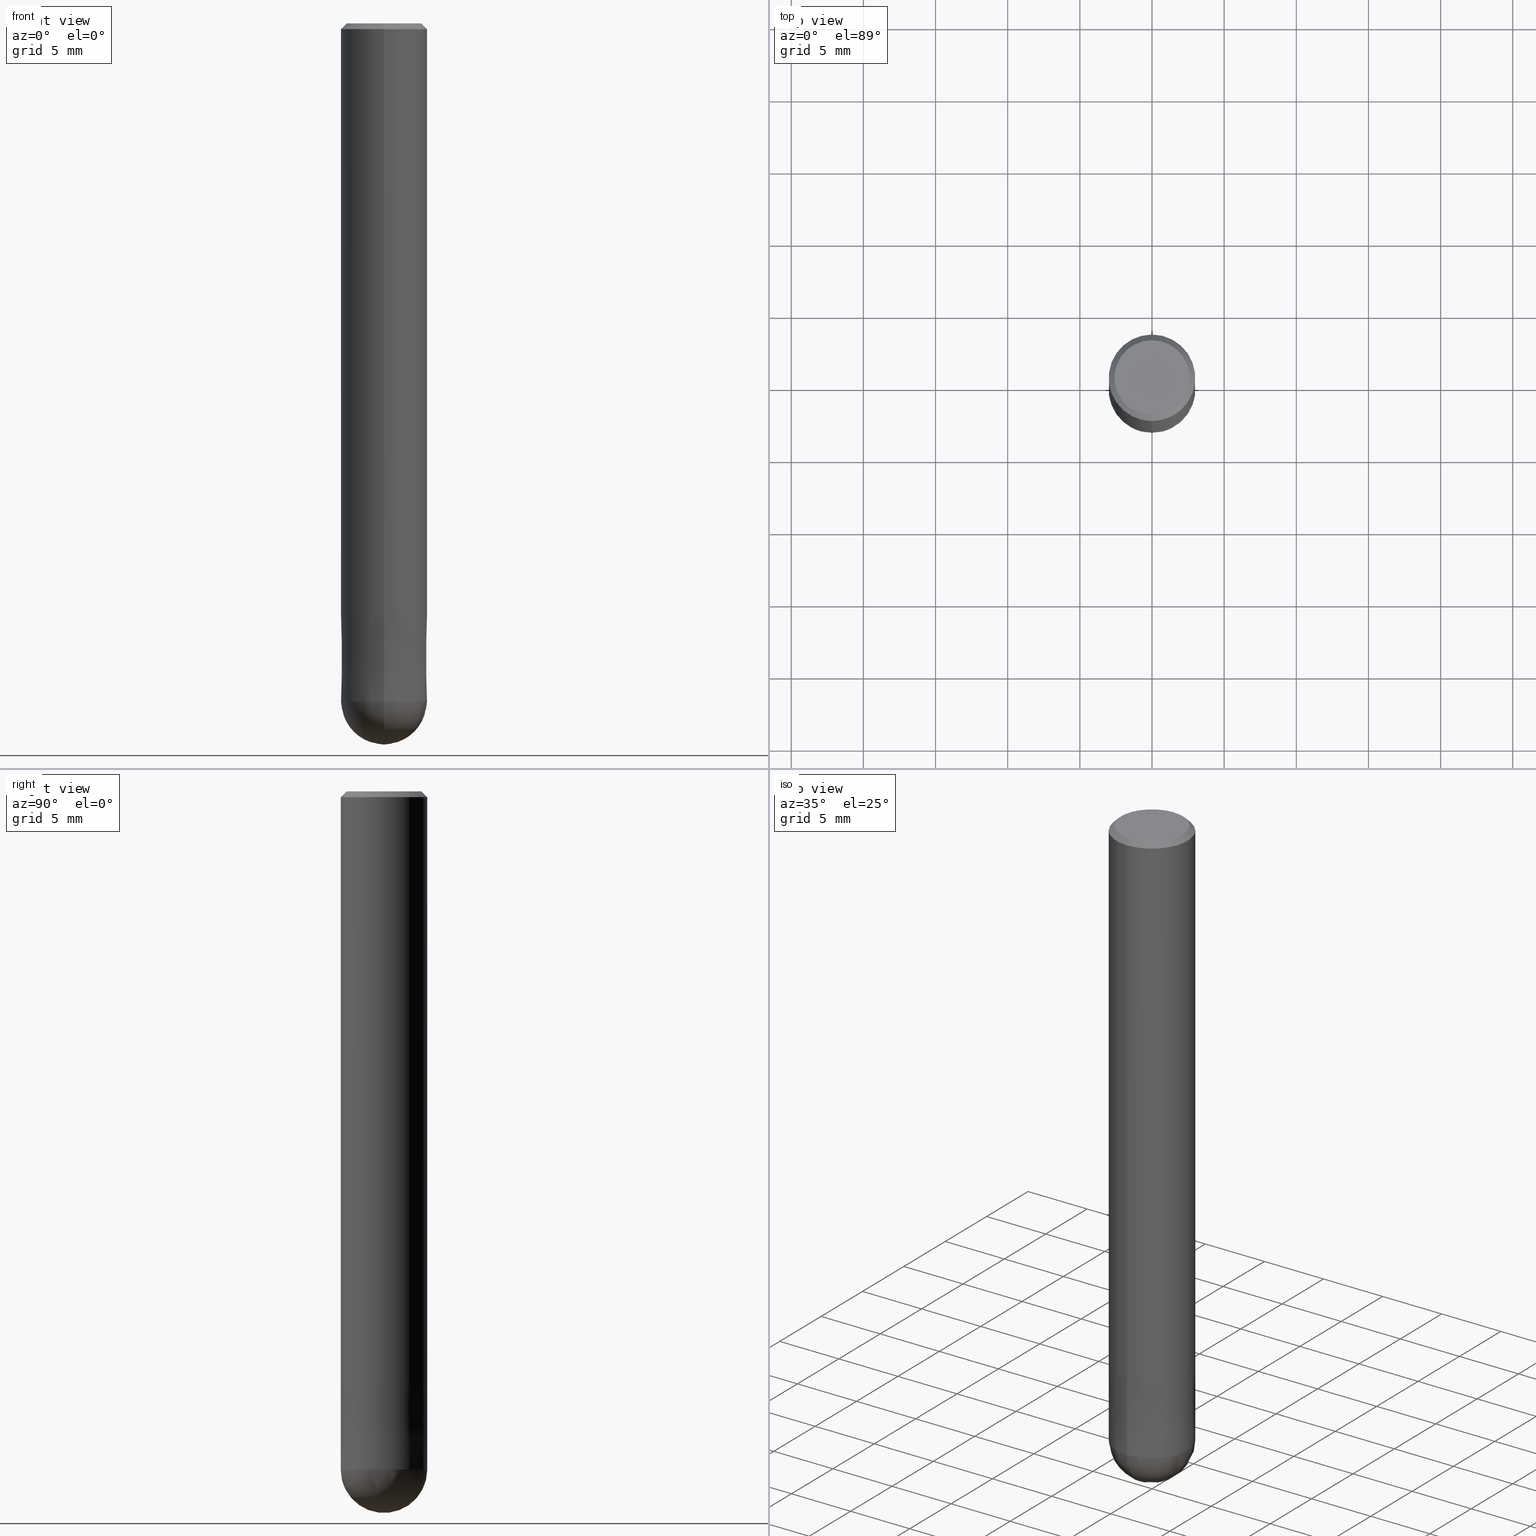
[diagram: canonical four-view strip — front | top / right | iso, engineering-drawing reading convention]
A machine part, canonical four-view strip (front | top / right | iso — engineering-drawing reading convention). The complete STEP part file that produces these views, byte-faithful:
ISO-10303-21;
HEADER;
FILE_DESCRIPTION(('no description'),'unknown implementation level');
FILE_NAME('HFB4060-0900S-Huellk.stp','  ',('CIMSOURCE GmbH'),('CADClick - KiM GmbH - www.kimweb.de'),'unknown preprocess','ACIS','unknown authorization');
FILE_SCHEMA(('automotive_design'));
ENDSEC;
DATA;
#1=MECHANICAL_DESIGN_GEOMETRIC_PRESENTATION_REPRESENTATION(' ',(#10,#11,#12,#13,#14,#15,#16,#17,#18,#19,#20,#21,#22,#23,#24,#25,#26,#27,#28,#29,#30,#31,#32,#33,#34,#35,#36,#37,#38,#39,#40,#41,#42,#43,#44,#45,#46,#47),#6);
#2=PRODUCT_DEFINITION_CONTEXT('',#48,'design');
#3=APPLICATION_PROTOCOL_DEFINITION('INTERNATIONAL STANDARD','automotive_design',1994,#48);
#4=PRODUCT_CATEGORY_RELATIONSHIP('NONE','NONE',#49,#50);
#5=SHAPE_DEFINITION_REPRESENTATION(#51,#52);
#6= (GEOMETRIC_REPRESENTATION_CONTEXT(3)GLOBAL_UNCERTAINTY_ASSIGNED_CONTEXT((#55))GLOBAL_UNIT_ASSIGNED_CONTEXT((#57,#58,#59))REPRESENTATION_CONTEXT('NONE','WORKSPACE'));
#10=STYLED_ITEM('',(#61),#62);
#11=STYLED_ITEM('',(#63),#64);
#12=STYLED_ITEM('',(#65),#66);
#13=STYLED_ITEM('',(#67),#68);
#14=STYLED_ITEM('',(#69),#70);
#15=STYLED_ITEM('',(#71),#72);
#16=STYLED_ITEM('',(#73),#74);
#17=STYLED_ITEM('',(#75),#76);
#18=STYLED_ITEM('',(#77),#78);
#19=STYLED_ITEM('',(#79),#80);
#20=STYLED_ITEM('',(#81),#82);
#21=STYLED_ITEM('',(#83),#84);
#22=STYLED_ITEM('',(#85),#86);
#23=STYLED_ITEM('',(#87),#88);
#24=STYLED_ITEM('',(#89),#90);
#25=STYLED_ITEM('',(#91),#92);
#26=STYLED_ITEM('',(#93),#94);
#27=STYLED_ITEM('',(#95),#96);
#28=STYLED_ITEM('',(#97),#98);
#29=STYLED_ITEM('',(#99),#100);
#30=STYLED_ITEM('',(#101),#102);
#31=STYLED_ITEM('',(#103),#104);
#32=STYLED_ITEM('',(#105),#106);
#33=STYLED_ITEM('',(#107),#108);
#34=STYLED_ITEM('',(#109),#110);
#35=STYLED_ITEM('',(#111),#112);
#36=STYLED_ITEM('',(#113),#114);
#37=STYLED_ITEM('',(#115),#116);
#38=STYLED_ITEM('',(#117),#118);
#39=STYLED_ITEM('',(#119),#120);
#40=STYLED_ITEM('',(#121),#122);
#41=STYLED_ITEM('',(#123),#124);
#42=STYLED_ITEM('',(#125),#126);
#43=STYLED_ITEM('',(#127),#128);
#44=STYLED_ITEM('',(#129),#130);
#45=STYLED_ITEM('',(#131),#132);
#46=STYLED_ITEM('',(#133),#134);
#47=STYLED_ITEM('',(#135),#136);
#48=APPLICATION_CONTEXT(' ');
#49=PRODUCT_CATEGORY('part','NONE');
#50=PRODUCT_RELATED_PRODUCT_CATEGORY('detail',' ',(#137));
#51=PRODUCT_DEFINITION_SHAPE('NONE','NONE',#138);
#52=ADVANCED_BREP_SHAPE_REPRESENTATION('1',(#112,#139),#6);
#55=UNCERTAINTY_MEASURE_WITH_UNIT(LENGTH_MEASURE(1.0E-006),#57,'','');
#57= (CONVERSION_BASED_UNIT('MILLIMETRE',#142)LENGTH_UNIT()NAMED_UNIT(#145));
#58= (NAMED_UNIT(#147)PLANE_ANGLE_UNIT()SI_UNIT($,.RADIAN.));
#59= (NAMED_UNIT(#147)SOLID_ANGLE_UNIT()SI_UNIT($,.STERADIAN.));
#61=PRESENTATION_STYLE_ASSIGNMENT((#153));
#62=VERTEX_POINT('',#154);
#63=PRESENTATION_STYLE_ASSIGNMENT((#155));
#64=EDGE_CURVE('',#62,#96,#156,.T.);
#65=PRESENTATION_STYLE_ASSIGNMENT((#157));
#66=ADVANCED_FACE('',(#158,#159),#160,.T.);
#67=PRESENTATION_STYLE_ASSIGNMENT((#161));
#68=EDGE_CURVE('',#96,#78,#162,.T.);
#69=PRESENTATION_STYLE_ASSIGNMENT((#163));
#70=ADVANCED_FACE('',(#164),#165,.T.);
#71=PRESENTATION_STYLE_ASSIGNMENT((#166));
#72=EDGE_CURVE('',#92,#98,#167,.T.);
#73=PRESENTATION_STYLE_ASSIGNMENT((#168));
#74=ADVANCED_FACE('',(#169),#170,.T.);
#75=PRESENTATION_STYLE_ASSIGNMENT((#171));
#76=EDGE_CURVE('',#114,#62,#172,.T.);
#77=PRESENTATION_STYLE_ASSIGNMENT((#173));
#78=VERTEX_POINT('',#174);
#79=PRESENTATION_STYLE_ASSIGNMENT((#175));
#80=VERTEX_POINT('',#176);
#81=PRESENTATION_STYLE_ASSIGNMENT((#177));
#82=VERTEX_POINT('',#178);
#83=PRESENTATION_STYLE_ASSIGNMENT((#179));
#84=EDGE_CURVE('',#80,#82,#180,.T.);
#85=PRESENTATION_STYLE_ASSIGNMENT((#181));
#86=EDGE_CURVE('',#92,#94,#182,.T.);
#87=PRESENTATION_STYLE_ASSIGNMENT((#183));
#88=ADVANCED_FACE('',(#184),#185,.T.);
#89=PRESENTATION_STYLE_ASSIGNMENT((#186));
#90=EDGE_CURVE('',#78,#114,#187,.T.);
#91=PRESENTATION_STYLE_ASSIGNMENT((#188));
#92=VERTEX_POINT('',#189);
#93=PRESENTATION_STYLE_ASSIGNMENT((#190));
#94=VERTEX_POINT('',#191);
#95=PRESENTATION_STYLE_ASSIGNMENT((#192));
#96=VERTEX_POINT('',#193);
#97=PRESENTATION_STYLE_ASSIGNMENT((#194));
#98=VERTEX_POINT('',#195);
#99=PRESENTATION_STYLE_ASSIGNMENT((#196));
#100=ADVANCED_FACE('',(#197),#198,.T.);
#101=PRESENTATION_STYLE_ASSIGNMENT((#199));
#102=EDGE_CURVE('',#130,#98,#200,.T.);
#103=PRESENTATION_STYLE_ASSIGNMENT((#201));
#104=ADVANCED_FACE('',(#202),#203,.T.);
#105=PRESENTATION_STYLE_ASSIGNMENT((#204));
#106=ADVANCED_FACE('',(#205),#206,.T.);
#107=PRESENTATION_STYLE_ASSIGNMENT((#207));
#108=ADVANCED_FACE('',(#208),#209,.T.);
#109=PRESENTATION_STYLE_ASSIGNMENT((#210));
#110=EDGE_CURVE('',#98,#130,#211,.T.);
#111=PRESENTATION_STYLE_ASSIGNMENT((#212));
#112=MANIFOLD_SOLID_BREP('1',#213);
#113=PRESENTATION_STYLE_ASSIGNMENT((#214));
#114=VERTEX_POINT('',#215);
#115=PRESENTATION_STYLE_ASSIGNMENT((#216));
#116=EDGE_CURVE('',#82,#130,#217,.T.);
#117=PRESENTATION_STYLE_ASSIGNMENT((#218));
#118=ADVANCED_FACE('',(#219),#220,.T.);
#119=PRESENTATION_STYLE_ASSIGNMENT((#221));
#120=EDGE_CURVE('',#62,#114,#222,.T.);
#121=PRESENTATION_STYLE_ASSIGNMENT((#223));
#122=EDGE_CURVE('',#78,#96,#224,.T.);
#123=PRESENTATION_STYLE_ASSIGNMENT((#225));
#124=EDGE_CURVE('',#62,#114,#226,.T.);
#125=PRESENTATION_STYLE_ASSIGNMENT((#227));
#126=EDGE_CURVE('',#82,#80,#228,.T.);
#127=PRESENTATION_STYLE_ASSIGNMENT((#229));
#128=EDGE_CURVE('',#98,#80,#230,.T.);
#129=PRESENTATION_STYLE_ASSIGNMENT((#231));
#130=VERTEX_POINT('',#232);
#131=PRESENTATION_STYLE_ASSIGNMENT((#233));
#132=EDGE_CURVE('',#94,#92,#234,.T.);
#133=PRESENTATION_STYLE_ASSIGNMENT((#235));
#134=EDGE_CURVE('',#130,#94,#236,.T.);
#135=PRESENTATION_STYLE_ASSIGNMENT((#237));
#136=ADVANCED_FACE('',(#238),#239,.T.);
#137=PRODUCT('1','1','PART-1-DESC',(#240));
#138=PRODUCT_DEFINITION('NONE','NONE',#241,#2);
#139=AXIS2_PLACEMENT_3D('',#242,#243,#244);
#142=LENGTH_MEASURE_WITH_UNIT(LENGTH_MEASURE(1.0),#245);
#145=DIMENSIONAL_EXPONENTS(1.0,0.0,0.0,0.0,0.0,0.0,0.0);
#147=DIMENSIONAL_EXPONENTS(0.0,0.0,0.0,0.0,0.0,0.0,0.0);
#153=POINT_STYLE(' ',#246,POSITIVE_LENGTH_MEASURE(1.0E-006),#247);
#154=CARTESIAN_POINT('',(3.67381906146713E-016,-3.0,-47.0));
#155=CURVE_STYLE('',#248,POSITIVE_LENGTH_MEASURE(1.0E-006),#249);
#156=LINE('',#250,#251);
#157=SURFACE_STYLE_USAGE(.BOTH.,#252);
#158=FACE_OUTER_BOUND('',#253,.T.);
#159=FACE_BOUND('',#254,.T.);
#160=PLANE('',#255);
#161=CURVE_STYLE('',#256,POSITIVE_LENGTH_MEASURE(1.0E-006),#257);
#162=CIRCLE('',#258,2.9999);
#163=SURFACE_STYLE_USAGE(.BOTH.,#259);
#164=FACE_OUTER_BOUND('',#260,.T.);
#165=CONICAL_SURFACE('',#261,2.99995,1.66666666652326E-005);
#166=CURVE_STYLE('',#262,POSITIVE_LENGTH_MEASURE(1.0E-006),#263);
#167=LINE('',#264,#265);
#168=SURFACE_STYLE_USAGE(.BOTH.,#266);
#169=FACE_OUTER_BOUND('',#267,.T.);
#170=SPHERICAL_SURFACE('',#268,3.00000000000001);
#171=CURVE_STYLE('',#269,POSITIVE_LENGTH_MEASURE(1.0E-006),#270);
#172=CIRCLE('',#271,3.0);
#173=POINT_STYLE(' ',#272,POSITIVE_LENGTH_MEASURE(1.0E-006),#273);
#174=CARTESIAN_POINT('',(0.0,2.9999,-41.0));
#175=POINT_STYLE(' ',#274,POSITIVE_LENGTH_MEASURE(1.0E-006),#275);
#176=CARTESIAN_POINT('',(0.0,3.0,-41.0));
#177=POINT_STYLE(' ',#276,POSITIVE_LENGTH_MEASURE(1.0E-006),#277);
#178=CARTESIAN_POINT('',(3.67381906146713E-016,-3.0,-41.0));
#179=CURVE_STYLE('',#278,POSITIVE_LENGTH_MEASURE(1.0E-006),#279);
#180=CIRCLE('',#280,3.0);
#181=CURVE_STYLE('',#281,POSITIVE_LENGTH_MEASURE(1.0E-006),#282);
#182=CIRCLE('',#283,2.6);
#183=SURFACE_STYLE_USAGE(.BOTH.,#284);
#184=FACE_OUTER_BOUND('',#285,.T.);
#185=PLANE('',#286);
#186=CURVE_STYLE('',#287,POSITIVE_LENGTH_MEASURE(1.0E-006),#288);
#187=LINE('',#289,#290);
#188=POINT_STYLE(' ',#291,POSITIVE_LENGTH_MEASURE(1.0E-006),#292);
#189=CARTESIAN_POINT('',(0.0,2.6,0.0));
#190=POINT_STYLE(' ',#293,POSITIVE_LENGTH_MEASURE(1.0E-006),#294);
#191=CARTESIAN_POINT('',(3.18397651993818E-016,-2.6,0.0));
#192=POINT_STYLE(' ',#295,POSITIVE_LENGTH_MEASURE(1.0E-006),#296);
#193=CARTESIAN_POINT('',(3.67369660083175E-016,-2.9999,-41.0));
#194=POINT_STYLE(' ',#297,POSITIVE_LENGTH_MEASURE(1.0E-006),#298);
#195=CARTESIAN_POINT('',(0.0,3.0,-0.399999999999999));
#196=SURFACE_STYLE_USAGE(.BOTH.,#299);
#197=FACE_OUTER_BOUND('',#300,.T.);
#198=CONICAL_SURFACE('',#301,2.8,0.78539816339745);
#199=CURVE_STYLE('',#302,POSITIVE_LENGTH_MEASURE(1.0E-006),#303);
#200=CIRCLE('',#304,3.0);
#201=SURFACE_STYLE_USAGE(.BOTH.,#305);
#202=FACE_OUTER_BOUND('',#306,.T.);
#203=SPHERICAL_SURFACE('',#307,3.00000000000001);
#204=SURFACE_STYLE_USAGE(.BOTH.,#308);
#205=FACE_OUTER_BOUND('',#309,.T.);
#206=CONICAL_SURFACE('',#310,2.99995,1.66666666652326E-005);
#207=SURFACE_STYLE_USAGE(.BOTH.,#311);
#208=FACE_OUTER_BOUND('',#312,.T.);
#209=CYLINDRICAL_SURFACE('',#313,3.0);
#210=CURVE_STYLE('',#314,POSITIVE_LENGTH_MEASURE(1.0E-006),#315);
#211=CIRCLE('',#316,3.0);
#212=SURFACE_STYLE_USAGE(.BOTH.,#317);
#213=CLOSED_SHELL('',(#74,#106,#136,#118,#66,#88,#100,#108,#70,#104));
#214=POINT_STYLE(' ',#318,POSITIVE_LENGTH_MEASURE(1.0E-006),#319);
#215=CARTESIAN_POINT('',(0.0,3.0,-47.0));
#216=CURVE_STYLE('',#320,POSITIVE_LENGTH_MEASURE(1.0E-006),#321);
#217=LINE('',#322,#323);
#218=SURFACE_STYLE_USAGE(.BOTH.,#324);
#219=FACE_OUTER_BOUND('',#325,.T.);
#220=CONICAL_SURFACE('',#326,2.8,0.78539816339745);
#221=CURVE_STYLE('',#327,POSITIVE_LENGTH_MEASURE(1.0E-006),#328);
#222=CIRCLE('',#329,3.0);
#223=CURVE_STYLE('',#330,POSITIVE_LENGTH_MEASURE(1.0E-006),#331);
#224=CIRCLE('',#332,2.9999);
#225=CURVE_STYLE('',#333,POSITIVE_LENGTH_MEASURE(1.0E-006),#334);
#226=CIRCLE('',#335,3.00000000000001);
#227=CURVE_STYLE('',#336,POSITIVE_LENGTH_MEASURE(1.0E-006),#337);
#228=CIRCLE('',#338,3.0);
#229=CURVE_STYLE('',#339,POSITIVE_LENGTH_MEASURE(1.0E-006),#340);
#230=LINE('',#341,#342);
#231=POINT_STYLE(' ',#343,POSITIVE_LENGTH_MEASURE(1.0E-006),#344);
#232=CARTESIAN_POINT('',(3.67381906146713E-016,-3.0,-0.399999999999999));
#233=CURVE_STYLE('',#345,POSITIVE_LENGTH_MEASURE(1.0E-006),#346);
#234=CIRCLE('',#347,2.6);
#235=CURVE_STYLE('',#348,POSITIVE_LENGTH_MEASURE(1.0E-006),#349);
#236=LINE('',#350,#351);
#237=SURFACE_STYLE_USAGE(.BOTH.,#352);
#238=FACE_OUTER_BOUND('',#353,.T.);
#239=CYLINDRICAL_SURFACE('',#354,3.0);
#240=PRODUCT_CONTEXT('',#48,'mechanical');
#241=PRODUCT_DEFINITION_FORMATION_WITH_SPECIFIED_SOURCE(' ','NONE',#137,.NOT_KNOWN.);
#242=CARTESIAN_POINT('',(0.0,0.0,0.0));
#243=DIRECTION('',(0.0,0.0,1.0));
#244=DIRECTION('',(1.0,0.0,0.0));
#245= (NAMED_UNIT(#145)LENGTH_UNIT()SI_UNIT(.MILLI.,.METRE.));
#246=PRE_DEFINED_MARKER('');
#247=COLOUR_RGB('',0.800000011920929,0.800000011920929,0.800000011920929);
#248=DRAUGHTING_PRE_DEFINED_CURVE_FONT('continuous');
#249=COLOUR_RGB('',0.800000011920929,0.800000011920929,0.800000011920929);
#250=CARTESIAN_POINT('',(3.67375783114944E-016,-2.99995,-44.0));
#251=VECTOR('',#356,1.0);
#252=SURFACE_SIDE_STYLE('',(#357));
#253=EDGE_LOOP('',(#358,#359));
#254=EDGE_LOOP('',(#360,#361));
#255=AXIS2_PLACEMENT_3D('',#362,#363,#364);
#256=DRAUGHTING_PRE_DEFINED_CURVE_FONT('continuous');
#257=COLOUR_RGB('',0.800000011920929,0.800000011920929,0.800000011920929);
#258=AXIS2_PLACEMENT_3D('',#365,#366,#367);
#259=SURFACE_SIDE_STYLE('',(#368));
#260=EDGE_LOOP('',(#369,#370,#371,#372));
#261=AXIS2_PLACEMENT_3D('',#373,#374,#375);
#262=DRAUGHTING_PRE_DEFINED_CURVE_FONT('continuous');
#263=COLOUR_RGB('',0.498039215803146,0.498039215803146,0.498039215803146);
#264=CARTESIAN_POINT('',(-3.42889779070266E-016,2.8,-0.200000000000003));
#265=VECTOR('',#376,1.0);
#266=SURFACE_SIDE_STYLE('',(#377));
#267=EDGE_LOOP('',(#378,#379));
#268=AXIS2_PLACEMENT_3D('',#380,#381,#382);
#269=DRAUGHTING_PRE_DEFINED_CURVE_FONT('continuous');
#270=COLOUR_RGB('',0.800000011920929,0.800000011920929,0.800000011920929);
#271=AXIS2_PLACEMENT_3D('',#383,#384,#385);
#272=PRE_DEFINED_MARKER('');
#273=COLOUR_RGB('',0.800000011920929,0.800000011920929,0.800000011920929);
#274=PRE_DEFINED_MARKER('');
#275=COLOUR_RGB('',0.498039215803146,0.498039215803146,0.498039215803146);
#276=PRE_DEFINED_MARKER('');
#277=COLOUR_RGB('',0.498039215803146,0.498039215803146,0.498039215803146);
#278=DRAUGHTING_PRE_DEFINED_CURVE_FONT('continuous');
#279=COLOUR_RGB('',0.498039215803146,0.498039215803146,0.498039215803146);
#280=AXIS2_PLACEMENT_3D('',#386,#387,#388);
#281=DRAUGHTING_PRE_DEFINED_CURVE_FONT('continuous');
#282=COLOUR_RGB('',0.498039215803146,0.498039215803146,0.498039215803146);
#283=AXIS2_PLACEMENT_3D('',#389,#390,#391);
#284=SURFACE_SIDE_STYLE('',(#392));
#285=EDGE_LOOP('',(#393,#394));
#286=AXIS2_PLACEMENT_3D('',#395,#396,#397);
#287=DRAUGHTING_PRE_DEFINED_CURVE_FONT('continuous');
#288=COLOUR_RGB('',0.800000011920929,0.800000011920929,0.800000011920929);
#289=CARTESIAN_POINT('',(-3.67375783114944E-016,2.99995,-44.0));
#290=VECTOR('',#398,1.0);
#291=PRE_DEFINED_MARKER('');
#292=COLOUR_RGB('',0.498039215803146,0.498039215803146,0.498039215803146);
#293=PRE_DEFINED_MARKER('');
#294=COLOUR_RGB('',0.498039215803146,0.498039215803146,0.498039215803146);
#295=PRE_DEFINED_MARKER('');
#296=COLOUR_RGB('',0.800000011920929,0.800000011920929,0.800000011920929);
#297=PRE_DEFINED_MARKER('');
#298=COLOUR_RGB('',0.498039215803146,0.498039215803146,0.498039215803146);
#299=SURFACE_SIDE_STYLE('',(#399));
#300=EDGE_LOOP('',(#400,#401,#402,#403));
#301=AXIS2_PLACEMENT_3D('',#404,#405,#406);
#302=DRAUGHTING_PRE_DEFINED_CURVE_FONT('continuous');
#303=COLOUR_RGB('',0.498039215803146,0.498039215803146,0.498039215803146);
#304=AXIS2_PLACEMENT_3D('',#407,#408,#409);
#305=SURFACE_SIDE_STYLE('',(#410));
#306=EDGE_LOOP('',(#411,#412));
#307=AXIS2_PLACEMENT_3D('',#413,#414,#415);
#308=SURFACE_SIDE_STYLE('',(#416));
#309=EDGE_LOOP('',(#417,#418,#419,#420));
#310=AXIS2_PLACEMENT_3D('',#421,#422,#423);
#311=SURFACE_SIDE_STYLE('',(#424));
#312=EDGE_LOOP('',(#425,#426,#427,#428));
#313=AXIS2_PLACEMENT_3D('',#429,#430,#431);
#314=DRAUGHTING_PRE_DEFINED_CURVE_FONT('continuous');
#315=COLOUR_RGB('',0.498039215803146,0.498039215803146,0.498039215803146);
#316=AXIS2_PLACEMENT_3D('',#432,#433,#434);
#317=SURFACE_SIDE_STYLE('',(#435));
#318=PRE_DEFINED_MARKER('');
#319=COLOUR_RGB('',0.800000011920929,0.800000011920929,0.800000011920929);
#320=DRAUGHTING_PRE_DEFINED_CURVE_FONT('continuous');
#321=COLOUR_RGB('',0.498039215803146,0.498039215803146,0.498039215803146);
#322=CARTESIAN_POINT('',(3.67381906146713E-016,-3.0,-20.7));
#323=VECTOR('',#436,1.0);
#324=SURFACE_SIDE_STYLE('',(#437));
#325=EDGE_LOOP('',(#438,#439,#440,#441));
#326=AXIS2_PLACEMENT_3D('',#442,#443,#444);
#327=DRAUGHTING_PRE_DEFINED_CURVE_FONT('continuous');
#328=COLOUR_RGB('',0.800000011920929,0.800000011920929,0.800000011920929);
#329=AXIS2_PLACEMENT_3D('',#445,#446,#447);
#330=DRAUGHTING_PRE_DEFINED_CURVE_FONT('continuous');
#331=COLOUR_RGB('',0.800000011920929,0.800000011920929,0.800000011920929);
#332=AXIS2_PLACEMENT_3D('',#448,#449,#450);
#333=DRAUGHTING_PRE_DEFINED_CURVE_FONT('continuous');
#334=COLOUR_RGB('',0.800000011920929,0.800000011920929,0.800000011920929);
#335=AXIS2_PLACEMENT_3D('',#451,#452,#453);
#336=DRAUGHTING_PRE_DEFINED_CURVE_FONT('continuous');
#337=COLOUR_RGB('',0.498039215803146,0.498039215803146,0.498039215803146);
#338=AXIS2_PLACEMENT_3D('',#454,#455,#456);
#339=DRAUGHTING_PRE_DEFINED_CURVE_FONT('continuous');
#340=COLOUR_RGB('',0.498039215803146,0.498039215803146,0.498039215803146);
#341=CARTESIAN_POINT('',(-3.67381906146713E-016,3.0,-20.7));
#342=VECTOR('',#457,1.0);
#343=PRE_DEFINED_MARKER('');
#344=COLOUR_RGB('',0.498039215803146,0.498039215803146,0.498039215803146);
#345=DRAUGHTING_PRE_DEFINED_CURVE_FONT('continuous');
#346=COLOUR_RGB('',0.498039215803146,0.498039215803146,0.498039215803146);
#347=AXIS2_PLACEMENT_3D('',#458,#459,#460);
#348=DRAUGHTING_PRE_DEFINED_CURVE_FONT('continuous');
#349=COLOUR_RGB('',0.498039215803146,0.498039215803146,0.498039215803146);
#350=CARTESIAN_POINT('',(3.42889779070266E-016,-2.8,-0.200000000000003));
#351=VECTOR('',#461,1.0);
#352=SURFACE_SIDE_STYLE('',(#462));
#353=EDGE_LOOP('',(#463,#464,#465,#466));
#354=AXIS2_PLACEMENT_3D('',#467,#468,#469);
#356=DIRECTION('',(-2.04101058943386E-021,1.6666666664461E-005,0.999999999861111));
#357=SURFACE_STYLE_FILL_AREA(#470);
#358=ORIENTED_EDGE('',*,*,#84,.T.);
#359=ORIENTED_EDGE('',*,*,#126,.T.);
#360=ORIENTED_EDGE('',*,*,#122,.F.);
#361=ORIENTED_EDGE('',*,*,#68,.F.);
#362=CARTESIAN_POINT('',(0.0,1.5,-41.0));
#363=DIRECTION('',(0.0,0.0,-1.0));
#364=DIRECTION('',(0.0,1.0,0.0));
#365=CARTESIAN_POINT('',(0.0,0.0,-41.0));
#366=DIRECTION('',(0.0,0.0,-1.0));
#367=DIRECTION('',(0.0,1.0,0.0));
#368=SURFACE_STYLE_FILL_AREA(#471);
#369=ORIENTED_EDGE('',*,*,#90,.T.);
#370=ORIENTED_EDGE('',*,*,#120,.F.);
#371=ORIENTED_EDGE('',*,*,#64,.T.);
#372=ORIENTED_EDGE('',*,*,#68,.T.);
#373=CARTESIAN_POINT('',(0.0,0.0,-44.0));
#374=DIRECTION('',(0.0,-0.0,-1.0));
#375=DIRECTION('',(0.0,1.0,0.0));
#376=DIRECTION('',(-8.65927457071937E-017,0.707106781186549,-0.707106781186546));
#377=SURFACE_STYLE_FILL_AREA(#472);
#378=ORIENTED_EDGE('',*,*,#124,.F.);
#379=ORIENTED_EDGE('',*,*,#120,.T.);
#380=CARTESIAN_POINT('',(0.0,0.0,-47.0));
#381=DIRECTION('',(0.0,1.0,0.0));
#382=DIRECTION('',(0.0,0.0,-1.0));
#383=CARTESIAN_POINT('',(0.0,0.0,-47.0));
#384=DIRECTION('',(0.0,0.0,-1.0));
#385=DIRECTION('',(0.0,1.0,0.0));
#386=CARTESIAN_POINT('',(0.0,0.0,-41.0));
#387=DIRECTION('',(0.0,0.0,-1.0));
#388=DIRECTION('',(0.0,1.0,0.0));
#389=CARTESIAN_POINT('',(0.0,0.0,0.0));
#390=DIRECTION('',(0.0,0.0,-1.0));
#391=DIRECTION('',(0.0,1.0,0.0));
#392=SURFACE_STYLE_FILL_AREA(#473);
#393=ORIENTED_EDGE('',*,*,#86,.F.);
#394=ORIENTED_EDGE('',*,*,#132,.F.);
#395=CARTESIAN_POINT('',(0.0,1.3,0.0));
#396=DIRECTION('',(-0.0,0.0,1.0));
#397=DIRECTION('',(0.0,-1.0,0.0));
#398=DIRECTION('',(-2.04101058943386E-021,1.6666666664461E-005,-0.999999999861111));
#399=SURFACE_STYLE_FILL_AREA(#474);
#400=ORIENTED_EDGE('',*,*,#72,.T.);
#401=ORIENTED_EDGE('',*,*,#102,.F.);
#402=ORIENTED_EDGE('',*,*,#134,.T.);
#403=ORIENTED_EDGE('',*,*,#132,.T.);
#404=CARTESIAN_POINT('',(0.0,0.0,-0.200000000000003));
#405=DIRECTION('',(0.0,-0.0,-1.0));
#406=DIRECTION('',(0.0,1.0,0.0));
#407=CARTESIAN_POINT('',(0.0,0.0,-0.399999999999999));
#408=DIRECTION('',(0.0,0.0,-1.0));
#409=DIRECTION('',(0.0,1.0,0.0));
#410=SURFACE_STYLE_FILL_AREA(#475);
#411=ORIENTED_EDGE('',*,*,#124,.T.);
#412=ORIENTED_EDGE('',*,*,#76,.T.);
#413=CARTESIAN_POINT('',(0.0,0.0,-47.0));
#414=DIRECTION('',(0.0,1.0,0.0));
#415=DIRECTION('',(0.0,0.0,-1.0));
#416=SURFACE_STYLE_FILL_AREA(#476);
#417=ORIENTED_EDGE('',*,*,#90,.F.);
#418=ORIENTED_EDGE('',*,*,#122,.T.);
#419=ORIENTED_EDGE('',*,*,#64,.F.);
#420=ORIENTED_EDGE('',*,*,#76,.F.);
#421=CARTESIAN_POINT('',(0.0,0.0,-44.0));
#422=DIRECTION('',(0.0,-0.0,-1.0));
#423=DIRECTION('',(0.0,1.0,0.0));
#424=SURFACE_STYLE_FILL_AREA(#477);
#425=ORIENTED_EDGE('',*,*,#128,.T.);
#426=ORIENTED_EDGE('',*,*,#126,.F.);
#427=ORIENTED_EDGE('',*,*,#116,.T.);
#428=ORIENTED_EDGE('',*,*,#102,.T.);
#429=CARTESIAN_POINT('',(0.0,0.0,-20.7));
#430=DIRECTION('',(-0.0,-0.0,1.0));
#431=DIRECTION('',(0.0,1.0,0.0));
#432=CARTESIAN_POINT('',(0.0,0.0,-0.399999999999999));
#433=DIRECTION('',(0.0,0.0,-1.0));
#434=DIRECTION('',(0.0,1.0,0.0));
#435=SURFACE_STYLE_FILL_AREA(#478);
#436=DIRECTION('',(-0.0,-0.0,1.0));
#437=SURFACE_STYLE_FILL_AREA(#479);
#438=ORIENTED_EDGE('',*,*,#72,.F.);
#439=ORIENTED_EDGE('',*,*,#86,.T.);
#440=ORIENTED_EDGE('',*,*,#134,.F.);
#441=ORIENTED_EDGE('',*,*,#110,.F.);
#442=CARTESIAN_POINT('',(0.0,0.0,-0.200000000000003));
#443=DIRECTION('',(0.0,-0.0,-1.0));
#444=DIRECTION('',(0.0,1.0,0.0));
#445=CARTESIAN_POINT('',(0.0,0.0,-47.0));
#446=DIRECTION('',(0.0,0.0,-1.0));
#447=DIRECTION('',(0.0,1.0,0.0));
#448=CARTESIAN_POINT('',(0.0,0.0,-41.0));
#449=DIRECTION('',(0.0,0.0,-1.0));
#450=DIRECTION('',(0.0,1.0,0.0));
#451=CARTESIAN_POINT('',(0.0,0.0,-47.0));
#452=DIRECTION('',(1.0,0.0,1.22460635382238E-016));
#453=DIRECTION('',(-1.22460635382238E-016,0.0,1.0));
#454=CARTESIAN_POINT('',(0.0,0.0,-41.0));
#455=DIRECTION('',(0.0,0.0,-1.0));
#456=DIRECTION('',(0.0,1.0,0.0));
#457=DIRECTION('',(0.0,0.0,-1.0));
#458=CARTESIAN_POINT('',(0.0,0.0,0.0));
#459=DIRECTION('',(0.0,0.0,-1.0));
#460=DIRECTION('',(0.0,1.0,0.0));
#461=DIRECTION('',(-8.65927457071937E-017,0.707106781186549,0.707106781186546));
#462=SURFACE_STYLE_FILL_AREA(#480);
#463=ORIENTED_EDGE('',*,*,#128,.F.);
#464=ORIENTED_EDGE('',*,*,#110,.T.);
#465=ORIENTED_EDGE('',*,*,#116,.F.);
#466=ORIENTED_EDGE('',*,*,#84,.F.);
#467=CARTESIAN_POINT('',(0.0,0.0,-20.7));
#468=DIRECTION('',(-0.0,-0.0,1.0));
#469=DIRECTION('',(0.0,1.0,0.0));
#470=FILL_AREA_STYLE('',(#481));
#471=FILL_AREA_STYLE('',(#482));
#472=FILL_AREA_STYLE('',(#483));
#473=FILL_AREA_STYLE('',(#484));
#474=FILL_AREA_STYLE('',(#485));
#475=FILL_AREA_STYLE('',(#486));
#476=FILL_AREA_STYLE('',(#487));
#477=FILL_AREA_STYLE('',(#488));
#478=FILL_AREA_STYLE('',(#489));
#479=FILL_AREA_STYLE('',(#490));
#480=FILL_AREA_STYLE('',(#491));
#481=FILL_AREA_STYLE_COLOUR('',#492);
#482=FILL_AREA_STYLE_COLOUR('',#493);
#483=FILL_AREA_STYLE_COLOUR('',#494);
#484=FILL_AREA_STYLE_COLOUR('',#495);
#485=FILL_AREA_STYLE_COLOUR('',#496);
#486=FILL_AREA_STYLE_COLOUR('',#497);
#487=FILL_AREA_STYLE_COLOUR('',#498);
#488=FILL_AREA_STYLE_COLOUR('',#499);
#489=FILL_AREA_STYLE_COLOUR('',#500);
#490=FILL_AREA_STYLE_COLOUR('',#501);
#491=FILL_AREA_STYLE_COLOUR('',#502);
#492=COLOUR_RGB('',0.498039215803146,0.498039215803146,0.498039215803146);
#493=COLOUR_RGB('',0.800000011920929,0.800000011920929,0.800000011920929);
#494=COLOUR_RGB('',0.800000011920929,0.800000011920929,0.800000011920929);
#495=COLOUR_RGB('',0.498039215803146,0.498039215803146,0.498039215803146);
#496=COLOUR_RGB('',0.498039215803146,0.498039215803146,0.498039215803146);
#497=COLOUR_RGB('',0.800000011920929,0.800000011920929,0.800000011920929);
#498=COLOUR_RGB('',0.800000011920929,0.800000011920929,0.800000011920929);
#499=COLOUR_RGB('',0.498039215803146,0.498039215803146,0.498039215803146);
#500=COLOUR_RGB('',0.800000011920929,0.800000011920929,0.800000011920929);
#501=COLOUR_RGB('',0.498039215803146,0.498039215803146,0.498039215803146);
#502=COLOUR_RGB('',0.498039215803146,0.498039215803146,0.498039215803146);
#503=AXIS2_PLACEMENT_3D('PCS',#504,#505,#506);
#504=CARTESIAN_POINT('',(0.0,0.0,0.0));
#505=DIRECTION('',(0.0,0.0,1.0));
#506=DIRECTION('',(1.0,0.0,0.0));
#507=AXIS2_PLACEMENT_3D('CIP',#508,#509,#510);
#508=CARTESIAN_POINT('',(0.0,0.0,-50.0));
#509=DIRECTION('',(0.0,0.0,1.0));
#510=DIRECTION('',(1.0,0.0,0.0));
#511=AXIS2_PLACEMENT_3D('CRP',#512,#513,#514);
#512=CARTESIAN_POINT('',(-3.0,0.0,-50.0));
#513=DIRECTION('',(0.0,0.0,1.0));
#514=DIRECTION('',(1.0,0.0,0.0));
#515=AXIS2_PLACEMENT_3D('MCS',#516,#517,#518);
#516=CARTESIAN_POINT('',(0.0,0.0,-41.0));
#517=DIRECTION('',(0.0,0.0,1.0));
#518=DIRECTION('',(1.0,0.0,0.0));
#519=CONSTRUCTIVE_GEOMETRY_REPRESENTATION_RELATIONSHIP('coordinate systems',$,#52,#520);
#520=CONSTRUCTIVE_GEOMETRY_REPRESENTATION('coordinate systems',(#503,#507,#511,#515),#6);
ENDSEC;
END-ISO-10303-21;
